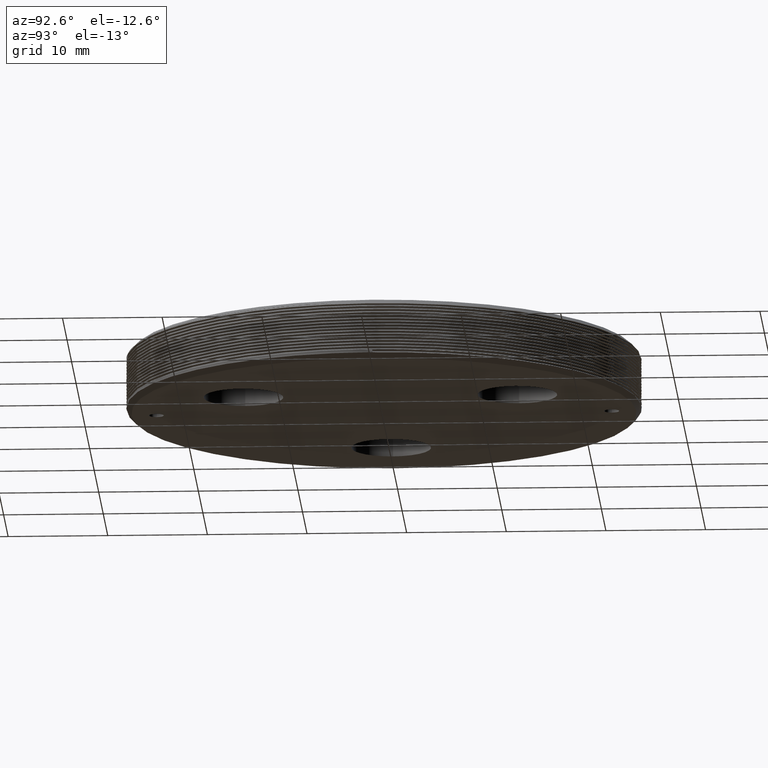
[diagram: clean part render]
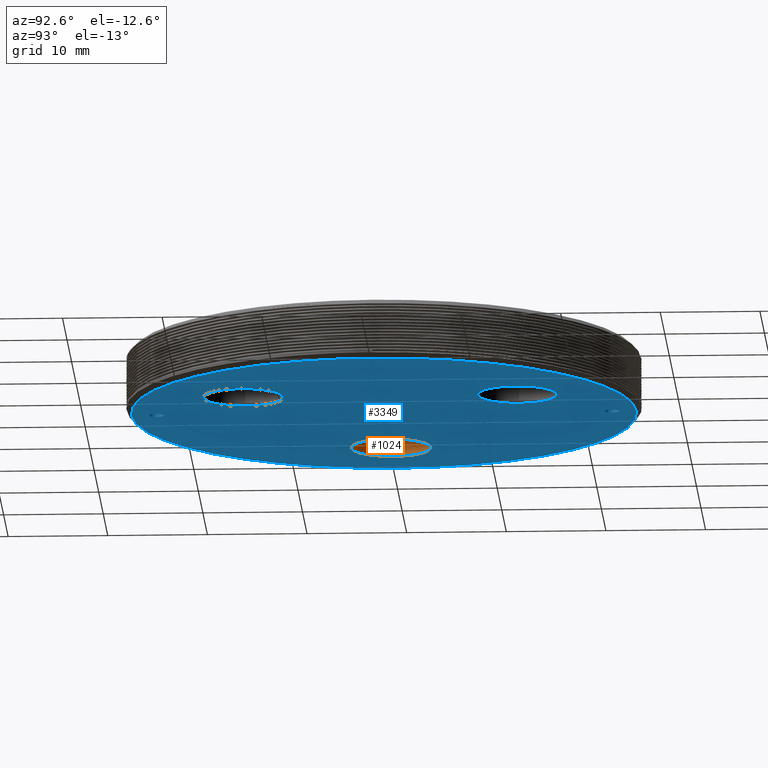
[diagram: same view with the hole feature highlighted: cylindrical wall and planar end face, labeled with their STEP entity ids]
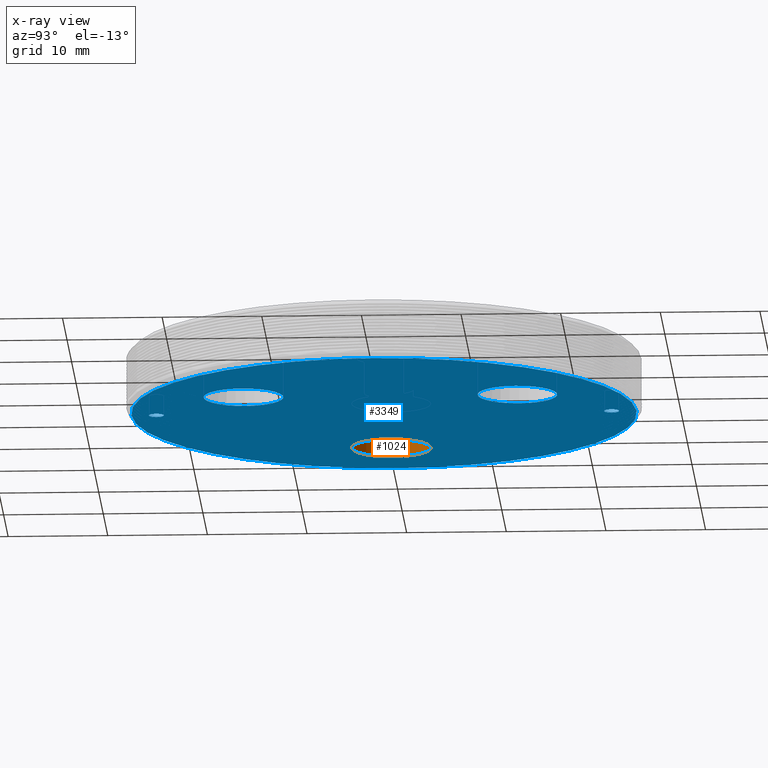
[diagram: x-ray of the same camera — body ghosted, the hole faces saturated]
A machine part, auxiliary view. The highlighted faces form one hole feature of diameter 8 mm: the cylindrical wall (entity #1024, orange) and its adjacent planar end face (entity #3349, blue) — they share a circular edge in the B-rep.
The next image is the same camera in x-ray (body ghosted, the hole faces saturated) — the bore reads through the body.
Wall:
#236 = AXIS2_PLACEMENT_3D ( 'NONE', #1371, #1177, #3524 ) ;
#332 = DIRECTION ( 'NONE',  ( -1.000000000000000000, 0.000000000000000000, 0.000000000000000000 ) ) ;
#473 = CIRCLE ( 'NONE', #715, 4.000000000000000000 ) ;
#715 = AXIS2_PLACEMENT_3D ( 'NONE', #3479, #3459, #2319 ) ;
#1024 = ADVANCED_FACE ( 'NONE', ( #1396, #3383 ), #1348, .F. ) ;
#1097 = ORIENTED_EDGE ( 'NONE', *, *, #2918, .F. ) ;
#1102 = CARTESIAN_POINT ( 'NONE',  ( -19.87500000000000355, -3.049318610115481221E-16, 1.499999999999999556 ) ) ;
#1177 = DIRECTION ( 'NONE',  ( -0.000000000000000000, -0.000000000000000000, -1.000000000000000000 ) ) ;
#1348 = CYLINDRICAL_SURFACE ( 'NONE', #236, 4.000000000000000000 ) ;
#1360 = ORIENTED_EDGE ( 'NONE', *, *, #1768, .F. ) ;
#1371 = CARTESIAN_POINT ( 'NONE',  ( -15.87500000000000355, -3.049318610115481221E-16, 1.499999999999999556 ) ) ;
#1396 = FACE_OUTER_BOUND ( 'NONE', #3468, .T. ) ;
#1519 = AXIS2_PLACEMENT_3D ( 'NONE', #2132, #1785, #332 ) ;
#1659 = EDGE_LOOP ( 'NONE', ( #1097 ) ) ;
#1768 = EDGE_CURVE ( 'NONE', #2068, #2068, #2196, .T. ) ;
#1785 = DIRECTION ( 'NONE',  ( 0.000000000000000000, 0.000000000000000000, 1.000000000000000000 ) ) ;
#2068 = VERTEX_POINT ( 'NONE', #2590 ) ;
#2132 = CARTESIAN_POINT ( 'NONE',  ( -15.87500000000000355, -3.049318610115481221E-16, -3.000000000000000000 ) ) ;
#2196 = CIRCLE ( 'NONE', #1519, 4.000000000000000000 ) ;
#2319 = DIRECTION ( 'NONE',  ( -1.000000000000000000, 0.000000000000000000, 0.000000000000000000 ) ) ;
#2590 = CARTESIAN_POINT ( 'NONE',  ( -19.87500000000000355, -3.049318610115481221E-16, -3.000000000000000000 ) ) ;
#2607 = VERTEX_POINT ( 'NONE', #1102 ) ;
#2918 = EDGE_CURVE ( 'NONE', #2607, #2607, #473, .T. ) ;
#3383 = FACE_OUTER_BOUND ( 'NONE', #1659, .T. ) ;
#3459 = DIRECTION ( 'NONE',  ( -0.000000000000000000, -0.000000000000000000, -1.000000000000000000 ) ) ;
#3468 = EDGE_LOOP ( 'NONE', ( #1360 ) ) ;
#3479 = CARTESIAN_POINT ( 'NONE',  ( -15.87500000000000355, -3.049318610115481221E-16, 1.499999999999999556 ) ) ;
#3524 = DIRECTION ( 'NONE',  ( -1.000000000000000000, 0.000000000000000000, 0.000000000000000000 ) ) ;
End face:
#36 = CIRCLE ( 'NONE', #466, 4.000000000000000888 ) ;
#182 = EDGE_CURVE ( 'NONE', #2848, #2848, #36, .T. ) ;
#197 = CARTESIAN_POINT ( 'NONE',  ( 0.000000000000000000, 0.000000000000000000, -3.000000000000000000 ) ) ;
#232 = ORIENTED_EDGE ( 'NONE', *, *, #2937, .F. ) ;
#332 = DIRECTION ( 'NONE',  ( -1.000000000000000000, 0.000000000000000000, 0.000000000000000000 ) ) ;
#466 = AXIS2_PLACEMENT_3D ( 'NONE', #2549, #527, #772 ) ;
#491 = ORIENTED_EDGE ( 'NONE', *, *, #2634, .F. ) ;
#527 = DIRECTION ( 'NONE',  ( 0.000000000000000000, 0.000000000000000000, 1.000000000000000000 ) ) ;
#548 = FACE_BOUND ( 'NONE', #1817, .T. ) ;
#583 = EDGE_CURVE ( 'NONE', #2893, #2893, #3547, .T. ) ;
#629 = EDGE_CURVE ( 'NONE', #2359, #2359, #2027, .T. ) ;
#772 = DIRECTION ( 'NONE',  ( -1.000000000000000000, 0.000000000000000000, 0.000000000000000000 ) ) ;
#786 = CIRCLE ( 'NONE', #3674, 0.7500000000000002220 ) ;
#831 = EDGE_LOOP ( 'NONE', ( #232 ) ) ;
#874 = CARTESIAN_POINT ( 'NONE',  ( 0.000000000000000000, 22.85000000000000142, -3.000000000000000000 ) ) ;
#963 = AXIS2_PLACEMENT_3D ( 'NONE', #1867, #3342, #3705 ) ;
#1110 = ORIENTED_EDGE ( 'NONE', *, *, #629, .F. ) ;
#1123 = EDGE_LOOP ( 'NONE', ( #1407 ) ) ;
#1164 = FACE_OUTER_BOUND ( 'NONE', #1673, .T. ) ;
#1373 = DIRECTION ( 'NONE',  ( 0.000000000000000000, 0.000000000000000000, 1.000000000000000000 ) ) ;
#1407 = ORIENTED_EDGE ( 'NONE', *, *, #583, .T. ) ;
#1409 = CIRCLE ( 'NONE', #963, 0.7500000000000002220 ) ;
#1420 = FACE_BOUND ( 'NONE', #831, .T. ) ;
#1447 = DIRECTION ( 'NONE',  ( 0.000000000000000000, 0.000000000000000000, 1.000000000000000000 ) ) ;
#1481 = VERTEX_POINT ( 'NONE', #1497 ) ;
#1497 = CARTESIAN_POINT ( 'NONE',  ( -0.7500000000000002220, 22.85000000000000142, -3.000000000000000000 ) ) ;
#1510 = ORIENTED_EDGE ( 'NONE', *, *, #1768, .T. ) ;
#1519 = AXIS2_PLACEMENT_3D ( 'NONE', #2132, #1785, #332 ) ;
#1673 = EDGE_LOOP ( 'NONE', ( #1110 ) ) ;
#1744 = DIRECTION ( 'NONE',  ( -1.000000000000000000, 0.000000000000000000, 0.000000000000000000 ) ) ;
#1768 = EDGE_CURVE ( 'NONE', #2068, #2068, #2196, .T. ) ;
#1785 = DIRECTION ( 'NONE',  ( 0.000000000000000000, 0.000000000000000000, 1.000000000000000000 ) ) ;
#1817 = EDGE_LOOP ( 'NONE', ( #1510 ) ) ;
#1867 = CARTESIAN_POINT ( 'NONE',  ( 0.000000000000000000, -22.85000000000000142, -3.000000000000000000 ) ) ;
#1949 = AXIS2_PLACEMENT_3D ( 'NONE', #3162, #1994, #3200 ) ;
#1994 = DIRECTION ( 'NONE',  ( 0.000000000000000000, 0.000000000000000000, 1.000000000000000000 ) ) ;
#2014 = CARTESIAN_POINT ( 'NONE',  ( -0.7500000000000002220, -22.85000000000000142, -3.000000000000000000 ) ) ;
#2027 = CIRCLE ( 'NONE', #1949, 25.34449999999999292 ) ;
#2068 = VERTEX_POINT ( 'NONE', #2590 ) ;
#2132 = CARTESIAN_POINT ( 'NONE',  ( -15.87500000000000355, -3.049318610115481221E-16, -3.000000000000000000 ) ) ;
#2196 = CIRCLE ( 'NONE', #1519, 4.000000000000000000 ) ;
#2348 = FACE_BOUND ( 'NONE', #3653, .T. ) ;
#2359 = VERTEX_POINT ( 'NONE', #3214 ) ;
#2547 = ORIENTED_EDGE ( 'NONE', *, *, #182, .T. ) ;
#2549 = CARTESIAN_POINT ( 'NONE',  ( 7.937500000000065725, -13.74815328507792778, -3.000000000000000000 ) ) ;
#2550 = DIRECTION ( 'NONE',  ( 1.000000000000000000, 0.000000000000000000, -0.000000000000000000 ) ) ;
#2564 = CARTESIAN_POINT ( 'NONE',  ( 3.937499999999872546, 13.74815328507803969, -3.000000000000000000 ) ) ;
#2590 = CARTESIAN_POINT ( 'NONE',  ( -19.87500000000000355, -3.049318610115481221E-16, -3.000000000000000000 ) ) ;
#2591 = DIRECTION ( 'NONE',  ( -1.000000000000000000, 0.000000000000000000, 0.000000000000000000 ) ) ;
#2613 = FACE_BOUND ( 'NONE', #1123, .T. ) ;
#2634 = EDGE_CURVE ( 'NONE', #3743, #3743, #1409, .T. ) ;
#2834 = FACE_BOUND ( 'NONE', #3737, .T. ) ;
#2848 = VERTEX_POINT ( 'NONE', #3490 ) ;
#2859 = DIRECTION ( 'NONE',  ( -0.000000000000000000, -0.000000000000000000, -1.000000000000000000 ) ) ;
#2893 = VERTEX_POINT ( 'NONE', #2564 ) ;
#2937 = EDGE_CURVE ( 'NONE', #1481, #1481, #786, .T. ) ;
#3162 = CARTESIAN_POINT ( 'NONE',  ( 0.000000000000000000, 0.000000000000000000, -2.999999999999999556 ) ) ;
#3168 = PLANE ( 'NONE',  #3355 ) ;
#3200 = DIRECTION ( 'NONE',  ( 1.000000000000000000, 0.000000000000000000, 0.000000000000000000 ) ) ;
#3214 = CARTESIAN_POINT ( 'NONE',  ( 25.34449999999999292, 0.000000000000000000, -2.999999999999999556 ) ) ;
#3342 = DIRECTION ( 'NONE',  ( -0.000000000000000000, -0.000000000000000000, -1.000000000000000000 ) ) ;
#3349 = ADVANCED_FACE ( 'NONE', ( #2613, #2834, #548, #1164, #2348, #1420 ), #3168, .F. ) ;
#3355 = AXIS2_PLACEMENT_3D ( 'NONE', #197, #1373, #2550 ) ;
#3490 = CARTESIAN_POINT ( 'NONE',  ( 3.937500000000065281, -13.74815328507792778, -3.000000000000000000 ) ) ;
#3491 = CARTESIAN_POINT ( 'NONE',  ( 7.937499999999873879, 13.74815328507803969, -3.000000000000000000 ) ) ;
#3547 = CIRCLE ( 'NONE', #3667, 4.000000000000000888 ) ;
#3653 = EDGE_LOOP ( 'NONE', ( #491 ) ) ;
#3667 = AXIS2_PLACEMENT_3D ( 'NONE', #3491, #1447, #2591 ) ;
#3674 = AXIS2_PLACEMENT_3D ( 'NONE', #874, #2859, #1744 ) ;
#3705 = DIRECTION ( 'NONE',  ( -1.000000000000000000, 0.000000000000000000, 0.000000000000000000 ) ) ;
#3737 = EDGE_LOOP ( 'NONE', ( #2547 ) ) ;
#3743 = VERTEX_POINT ( 'NONE', #2014 ) ;